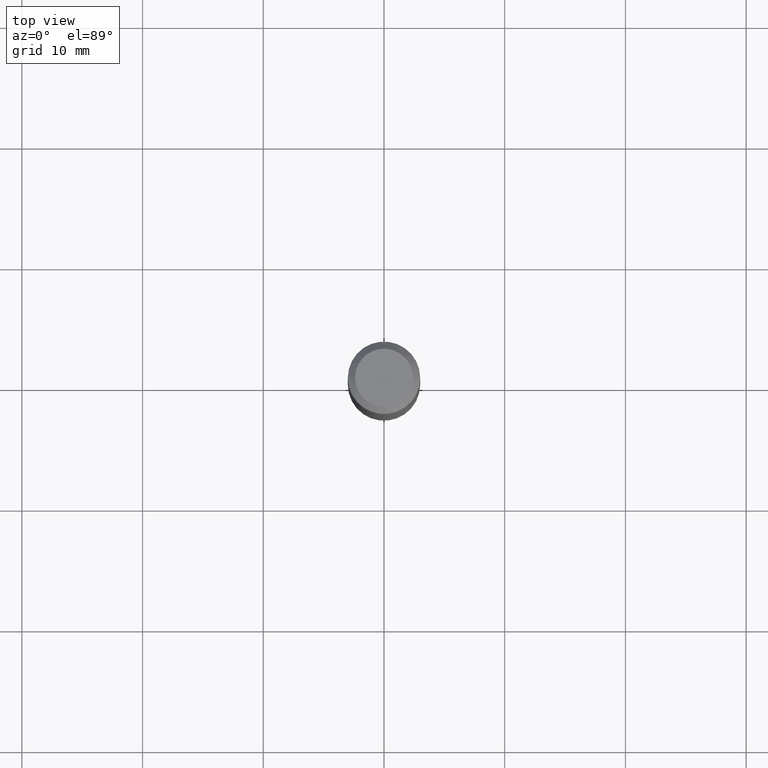
[diagram: clean part render]
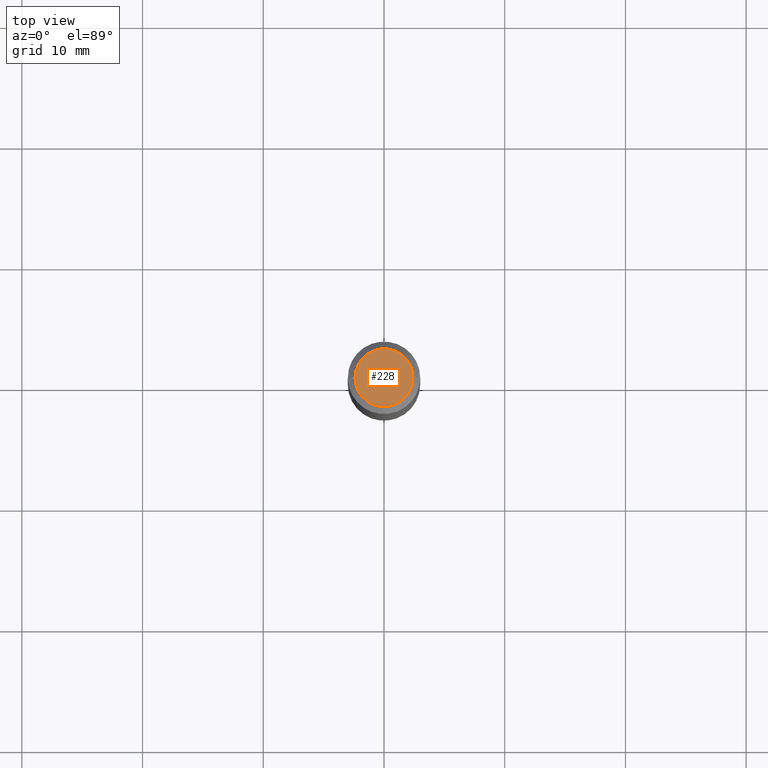
[diagram: same view with one face highlighted and labeled with its STEP entity id]
A machine part, top view. The second image highlights one B-rep face of the part: STEP entity #228.
In plain terms, the highlighted planar face has unit normal (0, -0, -1).
Its self-contained STEP definition (entity closure, byte-faithful):
#31 = EDGE_CURVE ( 'NONE', #189, #40, #83, .T. ) ;
#40 = VERTEX_POINT ( 'NONE', #117 ) ;
#46 = DIRECTION ( 'NONE',  ( 1.000000000000000000, -6.982962677686267499E-15, 4.875432709231658792E-29 ) ) ;
#61 = AXIS2_PLACEMENT_3D ( 'NONE', #280, #181, #342 ) ;
#83 = CIRCLE ( 'NONE', #148, 0.09447999999999998066 ) ;
#101 = DIRECTION ( 'NONE',  ( 2.438088387897960049E-29, -3.491481338843145188E-15, -1.000000000000000000 ) ) ;
#117 = CARTESIAN_POINT ( 'NONE',  ( 0.09447999999999998066, -7.704367267948738690E-16, -3.085620075131172158E-17 ) ) ;
#137 = FACE_OUTER_BOUND ( 'NONE', #264, .T. ) ;
#148 = AXIS2_PLACEMENT_3D ( 'NONE', #203, #159, #46 ) ;
#149 = ORIENTED_EDGE ( 'NONE', *, *, #440, .T. ) ;
#159 = DIRECTION ( 'NONE',  ( -2.445468806185136597E-29, 3.491481338843145583E-15, 1.000000000000000000 ) ) ;
#178 = CARTESIAN_POINT ( 'NONE',  ( 3.772893820736570314E-46, -5.386692455541008845E-32, -1.542810037565835988E-17 ) ) ;
#181 = DIRECTION ( 'NONE',  ( -2.445468806185136597E-29, 3.491481338843145583E-15, 1.000000000000000000 ) ) ;
#189 = VERTEX_POINT ( 'NONE', #470 ) ;
#203 = CARTESIAN_POINT ( 'NONE',  ( 7.545787641473140628E-46, -1.077338491108201769E-31, -3.085620075131671975E-17 ) ) ;
#219 = DIRECTION ( 'NONE',  ( -1.000000000000000000, 6.982962677686265922E-15, -4.876176775795935793E-29 ) ) ;
#228 = ADVANCED_FACE ( 'NONE', ( #137 ), #252, .F. ) ;
#252 = PLANE ( 'NONE',  #451 ) ;
#264 = EDGE_LOOP ( 'NONE', ( #392, #149 ) ) ;
#280 = CARTESIAN_POINT ( 'NONE',  ( 7.545787641473140628E-46, -1.077338491108201769E-31, -3.085620075131671975E-17 ) ) ;
#342 = DIRECTION ( 'NONE',  ( 1.000000000000000000, -6.982962677686267499E-15, 4.875432709231658792E-29 ) ) ;
#392 = ORIENTED_EDGE ( 'NONE', *, *, #31, .T. ) ;
#400 = CIRCLE ( 'NONE', #61, 0.09447999999999998066 ) ;
#440 = EDGE_CURVE ( 'NONE', #40, #189, #400, .T. ) ;
#451 = AXIS2_PLACEMENT_3D ( 'NONE', #178, #101, #219 ) ;
#470 = CARTESIAN_POINT ( 'NONE',  ( -0.09447999999999998066, 7.009847083995354710E-16, -3.085620075132147757E-17 ) ) ;